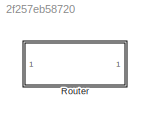
MODEL slx_2f257eb58720
KIND library
CONFIG AbsTol = auto
CONFIG EnableMultiTasking = off
CONFIG FixedStep = auto
CONFIG MaxStep = auto
CONFIG MinStep = auto
CONFIG RelTol = 1e-3
CONFIG SampleTimeConstraint = Unconstrained
CONFIG SolverName = VariableStepAuto
CONFIG StartTime = 0.0
CONFIG StopTime = 10.0
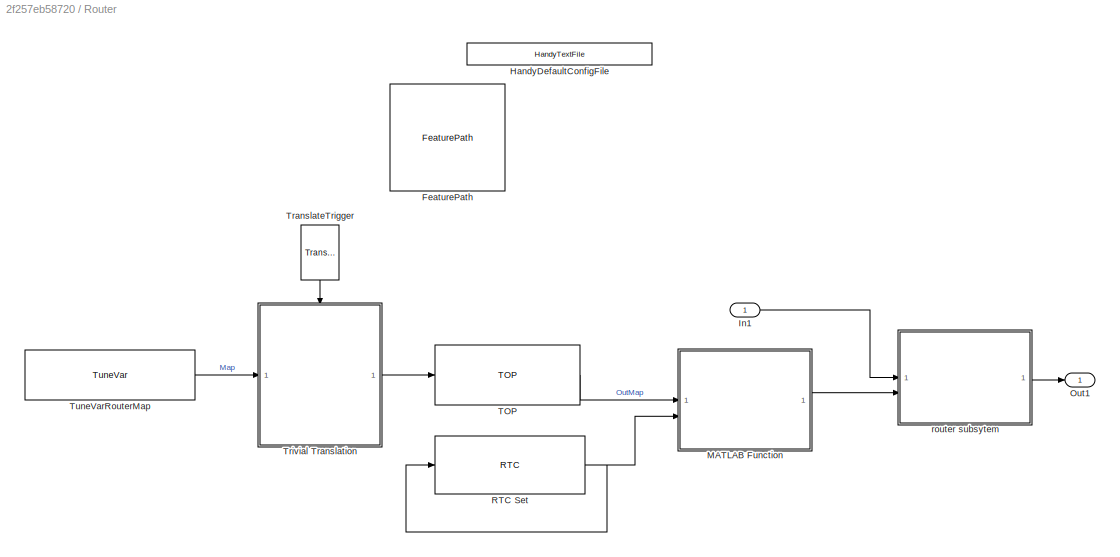
BLOCK [SubSystem] Router
BLOCK [Reference] Router/FeaturePath  REF=FeaturePath/FeaturePath
  SourceBlock = FeaturePath/FeaturePath
  SourceProductName = Bose Talaria
  SourceType = Talaria Feature Path
BLOCK [Reference] Router/HandyDefaultConfigFile  REF=HandyTextFile/HandyTextFile
  SourceBlock = HandyTextFile/HandyTextFile
  SourceProductName = Bose Talaria
  SourceType = Talaria Handy Text File
BLOCK [Inport] Router/In1
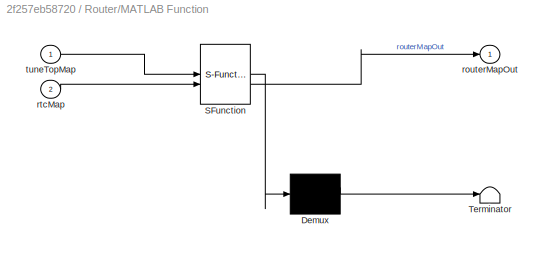
BLOCK [SubSystem] Router/MATLAB Function
  ErrorFcn = Stateflow.Translate.translate
  PermitHierarchicalResolution = ExplicitOnly
  SFBlockType = MATLAB Function
  TreatAsAtomicUnit = on
BLOCK [Demux] Router/MATLAB Function/ Demux 
  Outputs = 1
BLOCK [S-Function] Router/MATLAB Function/ SFunction 
  EnableBusSupport = off
  FunctionName = sf_sfun
  PortCounts = [2 2]
  SFcnIsStateOwnerBlock = off
  SFunctionDeploymentMode = off
  Tag = Stateflow S-Function 2
BLOCK [Terminator] Router/MATLAB Function/ Terminator 
BLOCK [Outport] Router/MATLAB Function/routerMapOut
  VectorParamsAs1DForOutWhenUnconnected = off
BLOCK [Inport] Router/MATLAB Function/rtcMap
  Port = 2
BLOCK [Inport] Router/MATLAB Function/tuneTopMap
BLOCK [Outport] Router/Out1
  VectorParamsAs1DForOutWhenUnconnected = off
BLOCK [Reference] Router/RTC Set  REF=RTC/RTC
  SourceBlock = RTC/RTC
  SourceProductName = Bose Talaria
  SourceType = Talaria RTC Receive
BLOCK [Reference] Router/TOP  REF=TOP/TOP
  SourceBlock = TOP/TOP
  SourceProductName = Bose Talaria
  SourceType = Talaria Target Overlay Parameter
BLOCK [Reference] Router/TranslateTrigger  REF=TuneVar/TranslateTrigger
  NameLocation = left
  SourceBlock = TuneVar/TranslateTrigger
  SourceProductName = Bose Talaria
  SourceType = Talaria Translate Trigger
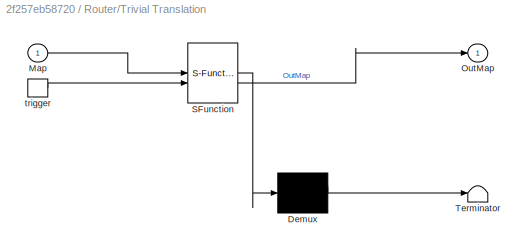
BLOCK [SubSystem] Router/Trivial Translation
  ErrorFcn = Stateflow.Translate.translate
  PermitHierarchicalResolution = ExplicitOnly
  SFBlockType = MATLAB Function
  TreatAsAtomicUnit = on
BLOCK [Demux] Router/Trivial Translation/ Demux 
  Outputs = 1
BLOCK [S-Function] Router/Trivial Translation/ SFunction 
  EnableBusSupport = off
  FunctionName = sf_sfun
  Parameters = nInRouterMask
  PortCounts = [2 2]
  SFcnIsStateOwnerBlock = off
  SFunctionDeploymentMode = off
  Tag = Stateflow S-Function 1
BLOCK [Terminator] Router/Trivial Translation/ Terminator 
BLOCK [Inport] Router/Trivial Translation/Map
BLOCK [Outport] Router/Trivial Translation/OutMap
  VectorParamsAs1DForOutWhenUnconnected = off
BLOCK [TriggerPort] Router/Trivial Translation/trigger
  ShowOutputPort = on
  StatesWhenEnabling = held
  TriggerType = function-call
  VariantControl = Variant
BLOCK [Reference] Router/TuneVarRouterMap  REF=TuneVar/TuneVar
  SourceBlock = TuneVar/TuneVar
  SourceProductName = Bose Talaria
  SourceType = Talaria Tune Variable
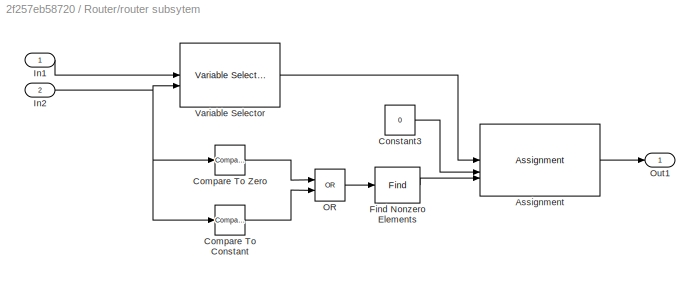
BLOCK [SubSystem] Router/router subsytem
BLOCK [Assignment] Router/router subsytem/Assignment
  DiagnosticForDimensions = Warning
  IndexOptions = Assign all,Index vector (port)
  Indices = 1,[1 3]
  NumberOfDimensions = 2
  OutputSizes = 1,1
BLOCK [Reference] Router/router subsytem/Compare To Constant  REF=simulink/Logic and Bit
Operations/Compare
To Constant
  SourceBlock = simulink/Logic and Bit\nOperations/Compare\nTo Constant
  SourceType = Compare To Constant
BLOCK [Reference] Router/router subsytem/Compare To Zero  REF=simulink/Logic and Bit
Operations/Compare
To Zero
  SourceBlock = simulink/Logic and Bit\nOperations/Compare\nTo Zero
  SourceType = Compare To Zero
BLOCK [Constant] Router/router subsytem/Constant3
  OutDataTypeStr = single
  Value = 0
BLOCK [Find] Router/router subsytem/Find Nonzero Elements
  NumberOfInputDimensions = 3
BLOCK [Inport] Router/router subsytem/In1
BLOCK [Inport] Router/router subsytem/In2
  Port = 2
BLOCK [Logic] Router/router subsytem/OR
  AllPortsSameDT = off
  IconShape = distinctive
  Operator = OR
  OutDataTypeStr = boolean
BLOCK [Outport] Router/router subsytem/Out1
  VectorParamsAs1DForOutWhenUnconnected = off
BLOCK [Reference] Router/router subsytem/Variable Selector  REF=dspindex/Variable
Selector
  SourceBlock = dspindex/Variable\nSelector
  SourceType = Variable Selector
LINE Router/In1:1 -> Router/router subsytem:1
LINE Router/MATLAB Function:1 -> Router/router subsytem:2
NET Router/RTC Set:1 -> Router/MATLAB Function:2, Router/RTC Set:1
LINE Router/TOP:1 -> Router/MATLAB Function:1
LINE Router/TranslateTrigger:1 -> Router/Trivial Translation:trigger
LINE Router/Trivial Translation:1 -> Router/TOP:1
LINE Router/TuneVarRouterMap:1 -> Router/Trivial Translation:1
LINE Router/router subsytem/Assignment:1 -> Router/router subsytem/Out1:1
LINE Router/router subsytem/Compare To Constant:1 -> Router/router subsytem/OR:2
LINE Router/router subsytem/Compare To Zero:1 -> Router/router subsytem/OR:1
LINE Router/router subsytem/Constant3:1 -> Router/router subsytem/Assignment:2
LINE Router/router subsytem/Find Nonzero Elements:1 -> Router/router subsytem/Assignment:3
LINE Router/router subsytem/In1:1 -> Router/router subsytem/Variable Selector:1
NET Router/router subsytem/In2:1 -> Router/router subsytem/Compare To Constant:1, Router/router subsytem/Compare To Zero:1, Router/router subsytem/Variable Selector:2
LINE Router/router subsytem/OR:1 -> Router/router subsytem/Find Nonzero Elements:1
LINE Router/router subsytem/Variable Selector:1 -> Router/router subsytem/Assignment:1
LINE Router/router subsytem:1 -> Router/Out1:1
note: NET lines group one-source signal fan-out (src -> all destinations, sorted); 1:1 wires keep LINE
CHART Router/Trivial Translation states=1 transitions=1
  STATE_LABEL 'eML_blk_kernel()'
  STATE_LABEL 'SCRIPT:\nfunction OutMap  = fcn(Map, nInRouterMask)\n%#codegen\n\n% ----- To access TuneVar maximum size, current size, and current value:\n%   Note: TuneVar signals arrive with exposed variable size information.\n%         The expressions below illustrate for the "Map" input argument.\n%\n%   size(Map.Value) : the maximum possible size of the Map variable\n%\n%   Tune.Size   : the current size of *valid* d...<+1882ch>'
CHART Router/MATLAB Function states=1 transitions=1
  STATE_LABEL 'eML_blk_kernel()'
  STATE_LABEL 'SCRIPT:\nfunction routerMapOut = choose_correct_map(tuneTopMap, rtcMap)\n\n% tuneTopMap is provided via a tune variable. However \n% if parameters are provided through RTC, the block will use the values \n% given in the RTC messages.\n\nNumiters=size(rtcMap,1);\nrouterMapOut = int32(tuneTopMap);\nfor ind=1:Numiters\n    if (rtcMap(ind))\n        routerMapOut(ind) = rtcMap(ind);        \n    end\nend'
CHART  states=0 transitions=0
CHART  states=0 transitions=0
